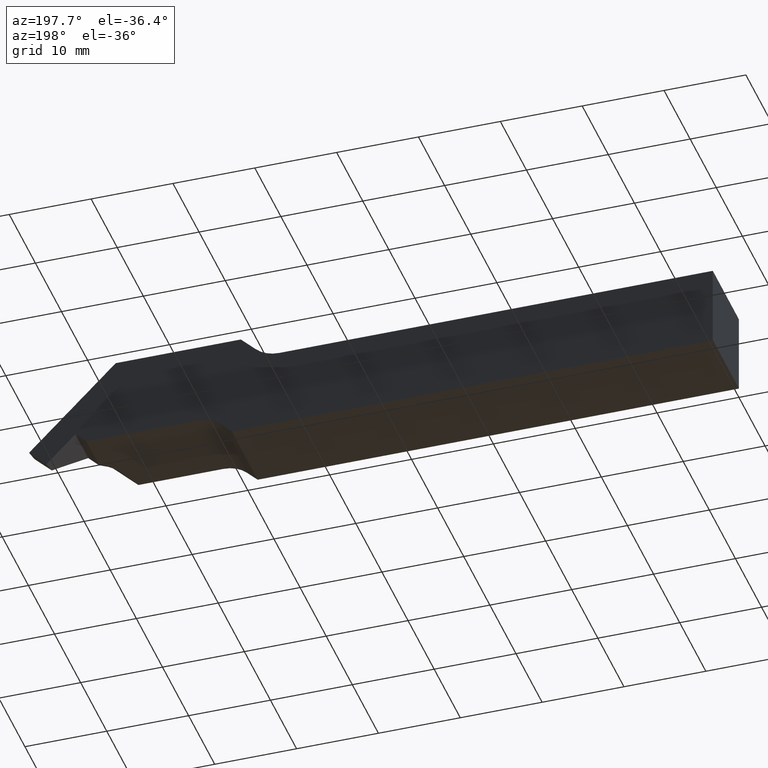
[diagram: clean part render]
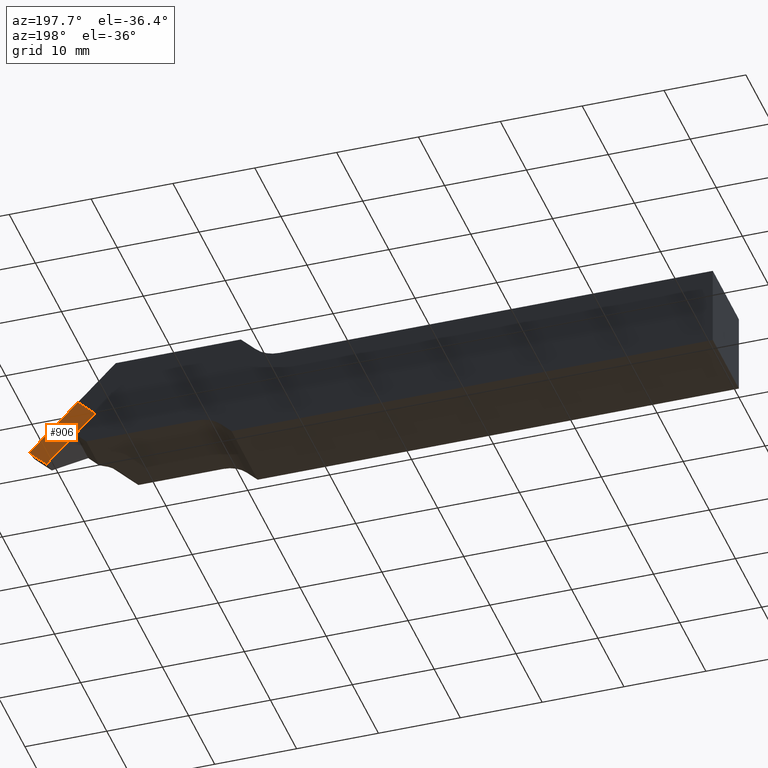
[diagram: same view with one face highlighted and labeled with its STEP entity id]
A machine part, auxiliary view. The second image highlights one B-rep face of the part: STEP entity #906.
In plain terms, the highlighted planar face has unit normal (-0, 1, -0).
Its self-contained STEP definition (entity closure, byte-faithful):
#31 = CARTESIAN_POINT ( 'NONE',  ( 6.000000000000031086, -6.554103633363077996, -3.000000000000157208 ) ) ;
#45 = EDGE_CURVE ( 'NONE', #826, #727, #59, .T. ) ;
#59 = LINE ( 'NONE', #698, #605 ) ;
#64 = AXIS2_PLACEMENT_3D ( 'NONE', #90, #735, #937 ) ;
#90 = CARTESIAN_POINT ( 'NONE',  ( 6.000000000000031086, -6.554103633363077996, -3.000000000000157208 ) ) ;
#104 = LINE ( 'NONE', #1022, #491 ) ;
#115 = EDGE_CURVE ( 'NONE', #727, #485, #104, .T. ) ;
#117 = EDGE_CURVE ( 'NONE', #1277, #485, #409, .T. ) ;
#141 = ORIENTED_EDGE ( 'NONE', *, *, #45, .F. ) ;
#206 = LINE ( 'NONE', #1049, #571 ) ;
#304 = CARTESIAN_POINT ( 'NONE',  ( 6.000000000000031086, -6.554103633363077996, -3.000000000000157208 ) ) ;
#360 = PLANE ( 'NONE',  #64 ) ;
#409 = LINE ( 'NONE', #304, #1165 ) ;
#450 = ORIENTED_EDGE ( 'NONE', *, *, #1203, .T. ) ;
#473 = CARTESIAN_POINT ( 'NONE',  ( 6.000000000000128786, -15.00000000000008349, -3.000000000000073719 ) ) ;
#480 = DIRECTION ( 'NONE',  ( -4.357006572847169399E-15, 1.808498695766025086E-30, 1.000000000000000000 ) ) ;
#485 = VERTEX_POINT ( 'NONE', #1131 ) ;
#491 = VECTOR ( 'NONE', #954, 1000.000000000000000 ) ;
#571 = VECTOR ( 'NONE', #626, 1000.000000000000000 ) ;
#605 = VECTOR ( 'NONE', #480, 1000.000000000000000 ) ;
#626 = DIRECTION ( 'NONE',  ( 1.779942960435143758E-16, 1.000000000000000000, 6.645747711384028454E-30 ) ) ;
#667 = EDGE_LOOP ( 'NONE', ( #1044, #141, #450, #1331 ) ) ;
#698 = CARTESIAN_POINT ( 'NONE',  ( 6.000000000000128786, -15.00000000000008349, -3.000000000000073719 ) ) ;
#727 = VERTEX_POINT ( 'NONE', #999 ) ;
#735 = DIRECTION ( 'NONE',  ( 1.000000000000000000, -1.779942960435143758E-16, -4.357006572847164666E-15 ) ) ;
#826 = VERTEX_POINT ( 'NONE', #473 ) ;
#904 = FACE_OUTER_BOUND ( 'NONE', #667, .T. ) ;
#906 = ADVANCED_FACE ( 'NONE', ( #904 ), #360, .T. ) ;
#937 = DIRECTION ( 'NONE',  ( 1.779942960435143758E-16, 1.000000000000000000, 6.645747711384029855E-30 ) ) ;
#954 = DIRECTION ( 'NONE',  ( 1.779942960435143758E-16, 1.000000000000000000, 6.645747711384028454E-30 ) ) ;
#999 = CARTESIAN_POINT ( 'NONE',  ( 5.999999999999991118, -15.00000000000016520, -5.030698080332740574E-14 ) ) ;
#1022 = CARTESIAN_POINT ( 'NONE',  ( 6.000000000000023093, -6.554103633363174808, -1.058181320345852328E-13 ) ) ;
#1044 = ORIENTED_EDGE ( 'NONE', *, *, #115, .F. ) ;
#1049 = CARTESIAN_POINT ( 'NONE',  ( 6.000000000000031086, -6.554103633363077996, -3.000000000000157208 ) ) ;
#1131 = CARTESIAN_POINT ( 'NONE',  ( 6.000000000000023093, -6.554103633363174808, -1.058181320345852328E-13 ) ) ;
#1165 = VECTOR ( 'NONE', #1313, 1000.000000000000000 ) ;
#1203 = EDGE_CURVE ( 'NONE', #826, #1277, #206, .T. ) ;
#1277 = VERTEX_POINT ( 'NONE', #31 ) ;
#1313 = DIRECTION ( 'NONE',  ( -4.357006572847169399E-15, 1.808498695766025086E-30, 1.000000000000000000 ) ) ;
#1331 = ORIENTED_EDGE ( 'NONE', *, *, #117, .T. ) ;